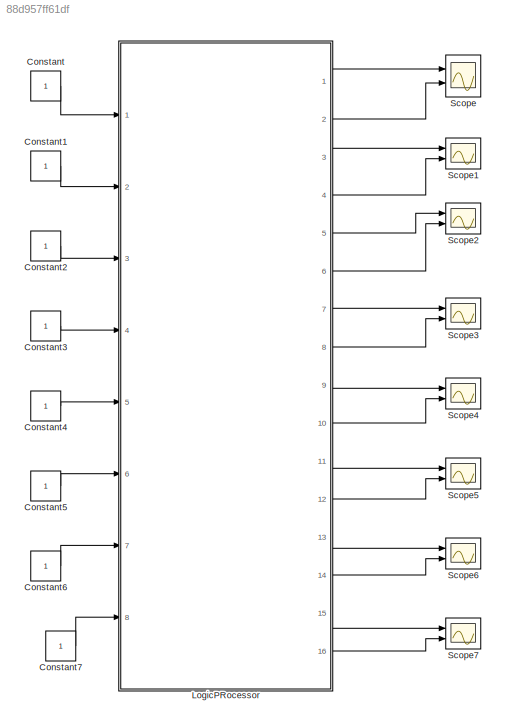
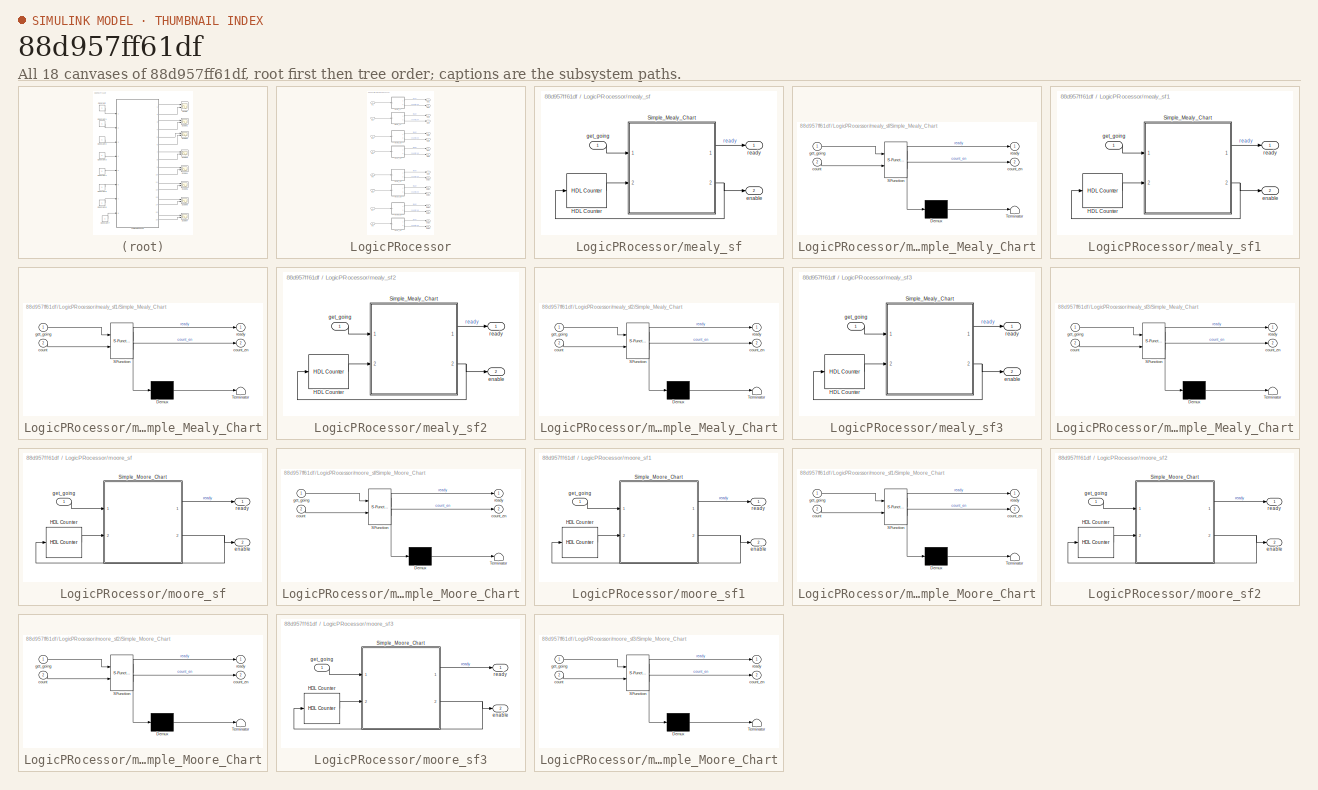
[diagram: thumbnail index - all 18 canvases of the model, root first then tree order]
MODEL slx_88d957ff61df
KIND model
CONFIG AbsTol = auto
CONFIG FixedStep = auto
CONFIG MaxStep = auto
CONFIG MinStep = auto
CONFIG RelTol = 1e-3
CONFIG SampleTimeConstraint = Unconstrained
CONFIG Solver = VariableStepAuto
CONFIG SolverMode = Auto
CONFIG SolverName = VariableStepAuto
CONFIG StartTime = 0.0
CONFIG StopTime = 10.0
BLOCK [Constant] Constant
  OutDataTypeStr = boolean
  SampleTime = 1
BLOCK [Constant] Constant1
  OutDataTypeStr = boolean
  SampleTime = 1
BLOCK [Constant] Constant2
  OutDataTypeStr = boolean
  SampleTime = 1
BLOCK [Constant] Constant3
  OutDataTypeStr = boolean
  SampleTime = 1
BLOCK [Constant] Constant4
  OutDataTypeStr = boolean
  SampleTime = 1
BLOCK [Constant] Constant5
  OutDataTypeStr = boolean
  SampleTime = 1
BLOCK [Constant] Constant6
  OutDataTypeStr = boolean
  SampleTime = 1
BLOCK [Constant] Constant7
  OutDataTypeStr = boolean
  SampleTime = 1
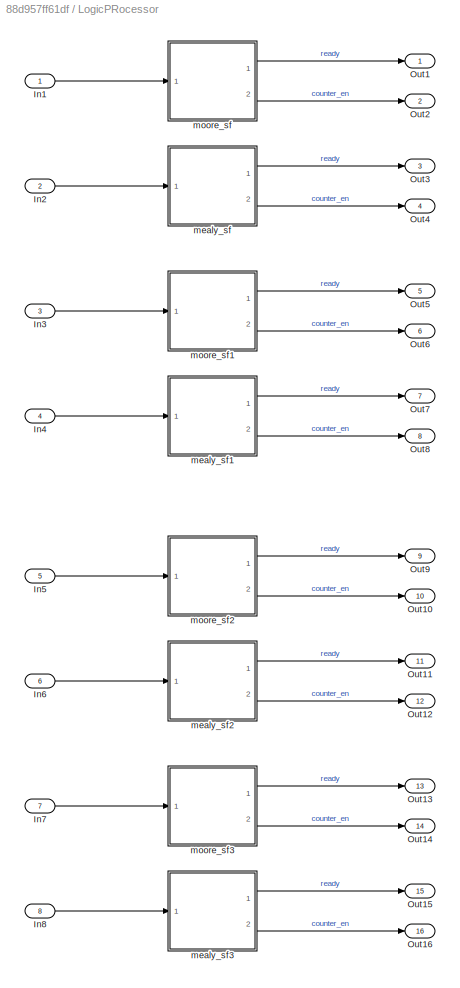
BLOCK [SubSystem] LogicPRocessor
  Ports = [8, 16]
  RequestExecContextInheritance = off
  Variant = off
BLOCK [Inport] LogicPRocessor/In1
  IconDisplay = Port number
BLOCK [Inport] LogicPRocessor/In2
  IconDisplay = Port number
  Port = 2
BLOCK [Inport] LogicPRocessor/In3
  IconDisplay = Port number
  Port = 3
BLOCK [Inport] LogicPRocessor/In4
  IconDisplay = Port number
  Port = 4
BLOCK [Inport] LogicPRocessor/In5
  IconDisplay = Port number
  Port = 5
BLOCK [Inport] LogicPRocessor/In6
  IconDisplay = Port number
  Port = 6
BLOCK [Inport] LogicPRocessor/In7
  IconDisplay = Port number
  Port = 7
BLOCK [Inport] LogicPRocessor/In8
  IconDisplay = Port number
  Port = 8
BLOCK [Outport] LogicPRocessor/Out1
  IconDisplay = Port number
BLOCK [Outport] LogicPRocessor/Out10
  IconDisplay = Port number
  Port = 10
BLOCK [Outport] LogicPRocessor/Out11
  IconDisplay = Port number
  Port = 11
BLOCK [Outport] LogicPRocessor/Out12
  IconDisplay = Port number
  Port = 12
BLOCK [Outport] LogicPRocessor/Out13
  IconDisplay = Port number
  Port = 13
BLOCK [Outport] LogicPRocessor/Out14
  IconDisplay = Port number
  Port = 14
BLOCK [Outport] LogicPRocessor/Out15
  IconDisplay = Port number
  Port = 15
BLOCK [Outport] LogicPRocessor/Out16
  IconDisplay = Port number
  Port = 16
BLOCK [Outport] LogicPRocessor/Out2
  IconDisplay = Port number
  Port = 2
BLOCK [Outport] LogicPRocessor/Out3
  IconDisplay = Port number
  Port = 3
BLOCK [Outport] LogicPRocessor/Out4
  IconDisplay = Port number
  Port = 4
BLOCK [Outport] LogicPRocessor/Out5
  IconDisplay = Port number
  Port = 5
BLOCK [Outport] LogicPRocessor/Out6
  IconDisplay = Port number
  Port = 6
BLOCK [Outport] LogicPRocessor/Out7
  IconDisplay = Port number
  Port = 7
BLOCK [Outport] LogicPRocessor/Out8
  IconDisplay = Port number
  Port = 8
BLOCK [Outport] LogicPRocessor/Out9
  IconDisplay = Port number
  Port = 9
BLOCK [SubSystem] LogicPRocessor/mealy_sf
  Ports = [1, 2]
  RequestExecContextInheritance = off
  Variant = off
BLOCK [Reference] LogicPRocessor/mealy_sf/HDL Counter  REF=hdlsllib/HDL Operations/HDL Counter
  Ports = [1, 1]
  SourceBlock = hdlsllib/HDL Operations/HDL Counter
  SourceType = HDL Counter
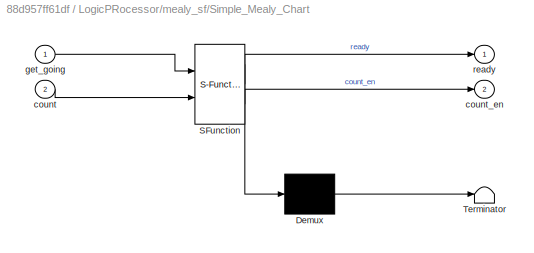
BLOCK [SubSystem] LogicPRocessor/mealy_sf/Simple_Mealy_Chart
  ErrorFcn = Stateflow.Translate.translate
  PermitHierarchicalResolution = ExplicitOnly
  Ports = [2, 2]
  RequestExecContextInheritance = off
  SFBlockType = Chart
  TreatAsAtomicUnit = on
  Variant = off
BLOCK [Demux] LogicPRocessor/mealy_sf/Simple_Mealy_Chart/ Demux 
  Outputs = 1
  Ports = [1, 1]
BLOCK [S-Function] LogicPRocessor/mealy_sf/Simple_Mealy_Chart/ SFunction 
  EnableBusSupport = on
  FunctionName = sf_sfun
  PortCounts = [2 3]
  Ports = [2, 3]
  SFunctionDeploymentMode = off
  Tag = Stateflow S-Function gm_LogicProcessor 2
BLOCK [Terminator] LogicPRocessor/mealy_sf/Simple_Mealy_Chart/ Terminator 
BLOCK [Inport] LogicPRocessor/mealy_sf/Simple_Mealy_Chart/count
  IconDisplay = Port number
  Port = 2
BLOCK [Outport] LogicPRocessor/mealy_sf/Simple_Mealy_Chart/count_en
  IconDisplay = Port number
  Port = 2
BLOCK [Inport] LogicPRocessor/mealy_sf/Simple_Mealy_Chart/get_going
  IconDisplay = Port number
BLOCK [Outport] LogicPRocessor/mealy_sf/Simple_Mealy_Chart/ready
  IconDisplay = Port number
BLOCK [Outport] LogicPRocessor/mealy_sf/enable
  IconDisplay = Port number
  Port = 2
BLOCK [Inport] LogicPRocessor/mealy_sf/get_going
  IconDisplay = Port number
BLOCK [Outport] LogicPRocessor/mealy_sf/ready
  IconDisplay = Port number
BLOCK [SubSystem] LogicPRocessor/mealy_sf1
  Ports = [1, 2]
  RequestExecContextInheritance = off
  Variant = off
BLOCK [Reference] LogicPRocessor/mealy_sf1/HDL Counter  REF=hdlsllib/HDL Operations/HDL Counter
  Ports = [1, 1]
  SourceBlock = hdlsllib/HDL Operations/HDL Counter
  SourceType = HDL Counter
BLOCK [SubSystem] LogicPRocessor/mealy_sf1/Simple_Mealy_Chart
  ErrorFcn = Stateflow.Translate.translate
  PermitHierarchicalResolution = ExplicitOnly
  Ports = [2, 2]
  RequestExecContextInheritance = off
  SFBlockType = Chart
  TreatAsAtomicUnit = on
  Variant = off
BLOCK [Demux] LogicPRocessor/mealy_sf1/Simple_Mealy_Chart/ Demux 
  Outputs = 1
  Ports = [1, 1]
BLOCK [S-Function] LogicPRocessor/mealy_sf1/Simple_Mealy_Chart/ SFunction 
  EnableBusSupport = on
  FunctionName = sf_sfun
  PortCounts = [2 3]
  Ports = [2, 3]
  SFunctionDeploymentMode = off
  Tag = Stateflow S-Function gm_LogicProcessor 3
BLOCK [Terminator] LogicPRocessor/mealy_sf1/Simple_Mealy_Chart/ Terminator 
BLOCK [Inport] LogicPRocessor/mealy_sf1/Simple_Mealy_Chart/count
  IconDisplay = Port number
  Port = 2
BLOCK [Outport] LogicPRocessor/mealy_sf1/Simple_Mealy_Chart/count_en
  IconDisplay = Port number
  Port = 2
BLOCK [Inport] LogicPRocessor/mealy_sf1/Simple_Mealy_Chart/get_going
  IconDisplay = Port number
BLOCK [Outport] LogicPRocessor/mealy_sf1/Simple_Mealy_Chart/ready
  IconDisplay = Port number
BLOCK [Outport] LogicPRocessor/mealy_sf1/enable
  IconDisplay = Port number
  Port = 2
BLOCK [Inport] LogicPRocessor/mealy_sf1/get_going
  IconDisplay = Port number
BLOCK [Outport] LogicPRocessor/mealy_sf1/ready
  IconDisplay = Port number
BLOCK [SubSystem] LogicPRocessor/mealy_sf2
  Ports = [1, 2]
  RequestExecContextInheritance = off
  Variant = off
BLOCK [Reference] LogicPRocessor/mealy_sf2/HDL Counter  REF=hdlsllib/HDL Operations/HDL Counter
  Ports = [1, 1]
  SourceBlock = hdlsllib/HDL Operations/HDL Counter
  SourceType = HDL Counter
BLOCK [SubSystem] LogicPRocessor/mealy_sf2/Simple_Mealy_Chart
  ErrorFcn = Stateflow.Translate.translate
  PermitHierarchicalResolution = ExplicitOnly
  Ports = [2, 2]
  RequestExecContextInheritance = off
  SFBlockType = Chart
  TreatAsAtomicUnit = on
  Variant = off
BLOCK [Demux] LogicPRocessor/mealy_sf2/Simple_Mealy_Chart/ Demux 
  Outputs = 1
  Ports = [1, 1]
BLOCK [S-Function] LogicPRocessor/mealy_sf2/Simple_Mealy_Chart/ SFunction 
  EnableBusSupport = on
  FunctionName = sf_sfun
  PortCounts = [2 3]
  Ports = [2, 3]
  SFunctionDeploymentMode = off
  Tag = Stateflow S-Function gm_LogicProcessor 5
BLOCK [Terminator] LogicPRocessor/mealy_sf2/Simple_Mealy_Chart/ Terminator 
BLOCK [Inport] LogicPRocessor/mealy_sf2/Simple_Mealy_Chart/count
  IconDisplay = Port number
  Port = 2
BLOCK [Outport] LogicPRocessor/mealy_sf2/Simple_Mealy_Chart/count_en
  IconDisplay = Port number
  Port = 2
BLOCK [Inport] LogicPRocessor/mealy_sf2/Simple_Mealy_Chart/get_going
  IconDisplay = Port number
BLOCK [Outport] LogicPRocessor/mealy_sf2/Simple_Mealy_Chart/ready
  IconDisplay = Port number
BLOCK [Outport] LogicPRocessor/mealy_sf2/enable
  IconDisplay = Port number
  Port = 2
BLOCK [Inport] LogicPRocessor/mealy_sf2/get_going
  IconDisplay = Port number
BLOCK [Outport] LogicPRocessor/mealy_sf2/ready
  IconDisplay = Port number
BLOCK [SubSystem] LogicPRocessor/mealy_sf3
  Ports = [1, 2]
  RequestExecContextInheritance = off
  Variant = off
BLOCK [Reference] LogicPRocessor/mealy_sf3/HDL Counter  REF=hdlsllib/HDL Operations/HDL Counter
  Ports = [1, 1]
  SourceBlock = hdlsllib/HDL Operations/HDL Counter
  SourceType = HDL Counter
BLOCK [SubSystem] LogicPRocessor/mealy_sf3/Simple_Mealy_Chart
  ErrorFcn = Stateflow.Translate.translate
  PermitHierarchicalResolution = ExplicitOnly
  Ports = [2, 2]
  RequestExecContextInheritance = off
  SFBlockType = Chart
  TreatAsAtomicUnit = on
  Variant = off
BLOCK [Demux] LogicPRocessor/mealy_sf3/Simple_Mealy_Chart/ Demux 
  Outputs = 1
  Ports = [1, 1]
BLOCK [S-Function] LogicPRocessor/mealy_sf3/Simple_Mealy_Chart/ SFunction 
  EnableBusSupport = on
  FunctionName = sf_sfun
  PortCounts = [2 3]
  Ports = [2, 3]
  SFunctionDeploymentMode = off
  Tag = Stateflow S-Function gm_LogicProcessor 6
BLOCK [Terminator] LogicPRocessor/mealy_sf3/Simple_Mealy_Chart/ Terminator 
BLOCK [Inport] LogicPRocessor/mealy_sf3/Simple_Mealy_Chart/count
  IconDisplay = Port number
  Port = 2
BLOCK [Outport] LogicPRocessor/mealy_sf3/Simple_Mealy_Chart/count_en
  IconDisplay = Port number
  Port = 2
BLOCK [Inport] LogicPRocessor/mealy_sf3/Simple_Mealy_Chart/get_going
  IconDisplay = Port number
BLOCK [Outport] LogicPRocessor/mealy_sf3/Simple_Mealy_Chart/ready
  IconDisplay = Port number
BLOCK [Outport] LogicPRocessor/mealy_sf3/enable
  IconDisplay = Port number
  Port = 2
BLOCK [Inport] LogicPRocessor/mealy_sf3/get_going
  IconDisplay = Port number
BLOCK [Outport] LogicPRocessor/mealy_sf3/ready
  IconDisplay = Port number
BLOCK [SubSystem] LogicPRocessor/moore_sf
  Ports = [1, 2]
  RequestExecContextInheritance = off
  Variant = off
BLOCK [Reference] LogicPRocessor/moore_sf/HDL Counter  REF=hdlsllib/HDL Operations/HDL Counter
  Ports = [1, 1]
  SourceBlock = hdlsllib/HDL Operations/HDL Counter
  SourceType = HDL Counter
BLOCK [SubSystem] LogicPRocessor/moore_sf/Simple_Moore_Chart
  ErrorFcn = Stateflow.Translate.translate
  PermitHierarchicalResolution = ExplicitOnly
  Ports = [2, 2]
  RequestExecContextInheritance = off
  SFBlockType = Chart
  TreatAsAtomicUnit = on
  Variant = off
BLOCK [Demux] LogicPRocessor/moore_sf/Simple_Moore_Chart/ Demux 
  Outputs = 1
  Ports = [1, 1]
BLOCK [S-Function] LogicPRocessor/moore_sf/Simple_Moore_Chart/ SFunction 
  EnableBusSupport = on
  FunctionName = sf_sfun
  PortCounts = [2 3]
  Ports = [2, 3]
  SFunctionDeploymentMode = off
  Tag = Stateflow S-Function gm_LogicProcessor 1
BLOCK [Terminator] LogicPRocessor/moore_sf/Simple_Moore_Chart/ Terminator 
BLOCK [Inport] LogicPRocessor/moore_sf/Simple_Moore_Chart/count
  IconDisplay = Port number
  Port = 2
BLOCK [Outport] LogicPRocessor/moore_sf/Simple_Moore_Chart/count_en
  IconDisplay = Port number
  Port = 2
BLOCK [Inport] LogicPRocessor/moore_sf/Simple_Moore_Chart/get_going
  IconDisplay = Port number
BLOCK [Outport] LogicPRocessor/moore_sf/Simple_Moore_Chart/ready
  IconDisplay = Port number
BLOCK [Outport] LogicPRocessor/moore_sf/enable
  IconDisplay = Port number
  Port = 2
BLOCK [Inport] LogicPRocessor/moore_sf/get_going
  IconDisplay = Port number
BLOCK [Outport] LogicPRocessor/moore_sf/ready
  IconDisplay = Port number
BLOCK [SubSystem] LogicPRocessor/moore_sf1
  Ports = [1, 2]
  RequestExecContextInheritance = off
  Variant = off
BLOCK [Reference] LogicPRocessor/moore_sf1/HDL Counter  REF=hdlsllib/HDL Operations/HDL Counter
  Ports = [1, 1]
  SourceBlock = hdlsllib/HDL Operations/HDL Counter
  SourceType = HDL Counter
BLOCK [SubSystem] LogicPRocessor/moore_sf1/Simple_Moore_Chart
  ErrorFcn = Stateflow.Translate.translate
  PermitHierarchicalResolution = ExplicitOnly
  Ports = [2, 2]
  RequestExecContextInheritance = off
  SFBlockType = Chart
  TreatAsAtomicUnit = on
  Variant = off
BLOCK [Demux] LogicPRocessor/moore_sf1/Simple_Moore_Chart/ Demux 
  Outputs = 1
  Ports = [1, 1]
BLOCK [S-Function] LogicPRocessor/moore_sf1/Simple_Moore_Chart/ SFunction 
  EnableBusSupport = on
  FunctionName = sf_sfun
  PortCounts = [2 3]
  Ports = [2, 3]
  SFunctionDeploymentMode = off
  Tag = Stateflow S-Function gm_LogicProcessor 4
BLOCK [Terminator] LogicPRocessor/moore_sf1/Simple_Moore_Chart/ Terminator 
BLOCK [Inport] LogicPRocessor/moore_sf1/Simple_Moore_Chart/count
  IconDisplay = Port number
  Port = 2
BLOCK [Outport] LogicPRocessor/moore_sf1/Simple_Moore_Chart/count_en
  IconDisplay = Port number
  Port = 2
BLOCK [Inport] LogicPRocessor/moore_sf1/Simple_Moore_Chart/get_going
  IconDisplay = Port number
BLOCK [Outport] LogicPRocessor/moore_sf1/Simple_Moore_Chart/ready
  IconDisplay = Port number
BLOCK [Outport] LogicPRocessor/moore_sf1/enable
  IconDisplay = Port number
  Port = 2
BLOCK [Inport] LogicPRocessor/moore_sf1/get_going
  IconDisplay = Port number
BLOCK [Outport] LogicPRocessor/moore_sf1/ready
  IconDisplay = Port number
BLOCK [SubSystem] LogicPRocessor/moore_sf2
  Ports = [1, 2]
  RequestExecContextInheritance = off
  Variant = off
BLOCK [Reference] LogicPRocessor/moore_sf2/HDL Counter  REF=hdlsllib/HDL Operations/HDL Counter
  Ports = [1, 1]
  SourceBlock = hdlsllib/HDL Operations/HDL Counter
  SourceType = HDL Counter
BLOCK [SubSystem] LogicPRocessor/moore_sf2/Simple_Moore_Chart
  ErrorFcn = Stateflow.Translate.translate
  PermitHierarchicalResolution = ExplicitOnly
  Ports = [2, 2]
  RequestExecContextInheritance = off
  SFBlockType = Chart
  TreatAsAtomicUnit = on
  Variant = off
BLOCK [Demux] LogicPRocessor/moore_sf2/Simple_Moore_Chart/ Demux 
  Outputs = 1
  Ports = [1, 1]
BLOCK [S-Function] LogicPRocessor/moore_sf2/Simple_Moore_Chart/ SFunction 
  EnableBusSupport = on
  FunctionName = sf_sfun
  PortCounts = [2 3]
  Ports = [2, 3]
  SFunctionDeploymentMode = off
  Tag = Stateflow S-Function gm_LogicProcessor 7
BLOCK [Terminator] LogicPRocessor/moore_sf2/Simple_Moore_Chart/ Terminator 
BLOCK [Inport] LogicPRocessor/moore_sf2/Simple_Moore_Chart/count
  IconDisplay = Port number
  Port = 2
BLOCK [Outport] LogicPRocessor/moore_sf2/Simple_Moore_Chart/count_en
  IconDisplay = Port number
  Port = 2
BLOCK [Inport] LogicPRocessor/moore_sf2/Simple_Moore_Chart/get_going
  IconDisplay = Port number
BLOCK [Outport] LogicPRocessor/moore_sf2/Simple_Moore_Chart/ready
  IconDisplay = Port number
BLOCK [Outport] LogicPRocessor/moore_sf2/enable
  IconDisplay = Port number
  Port = 2
BLOCK [Inport] LogicPRocessor/moore_sf2/get_going
  IconDisplay = Port number
BLOCK [Outport] LogicPRocessor/moore_sf2/ready
  IconDisplay = Port number
BLOCK [SubSystem] LogicPRocessor/moore_sf3
  Ports = [1, 2]
  RequestExecContextInheritance = off
  Variant = off
BLOCK [Reference] LogicPRocessor/moore_sf3/HDL Counter  REF=hdlsllib/HDL Operations/HDL Counter
  Ports = [1, 1]
  SourceBlock = hdlsllib/HDL Operations/HDL Counter
  SourceType = HDL Counter
BLOCK [SubSystem] LogicPRocessor/moore_sf3/Simple_Moore_Chart
  ErrorFcn = Stateflow.Translate.translate
  PermitHierarchicalResolution = ExplicitOnly
  Ports = [2, 2]
  RequestExecContextInheritance = off
  SFBlockType = Chart
  TreatAsAtomicUnit = on
  Variant = off
BLOCK [Demux] LogicPRocessor/moore_sf3/Simple_Moore_Chart/ Demux 
  Outputs = 1
  Ports = [1, 1]
BLOCK [S-Function] LogicPRocessor/moore_sf3/Simple_Moore_Chart/ SFunction 
  EnableBusSupport = on
  FunctionName = sf_sfun
  PortCounts = [2 3]
  Ports = [2, 3]
  SFunctionDeploymentMode = off
  Tag = Stateflow S-Function gm_LogicProcessor 8
BLOCK [Terminator] LogicPRocessor/moore_sf3/Simple_Moore_Chart/ Terminator 
BLOCK [Inport] LogicPRocessor/moore_sf3/Simple_Moore_Chart/count
  IconDisplay = Port number
  Port = 2
BLOCK [Outport] LogicPRocessor/moore_sf3/Simple_Moore_Chart/count_en
  IconDisplay = Port number
  Port = 2
BLOCK [Inport] LogicPRocessor/moore_sf3/Simple_Moore_Chart/get_going
  IconDisplay = Port number
BLOCK [Outport] LogicPRocessor/moore_sf3/Simple_Moore_Chart/ready
  IconDisplay = Port number
BLOCK [Outport] LogicPRocessor/moore_sf3/enable
  IconDisplay = Port number
  Port = 2
BLOCK [Inport] LogicPRocessor/moore_sf3/get_going
  IconDisplay = Port number
BLOCK [Outport] LogicPRocessor/moore_sf3/ready
  IconDisplay = Port number
BLOCK [Scope] Scope
  NumInputPorts = 2
  Ports = [2]
  ScopeSpecificationString = Simulink.scopes.TimeScopeBlockCfg('CurrentConfiguration', extmgr.ConfigurationSet(extmgr.Configuration('Core','General UI',true,'ShowLoadConfigSet',false,'ShowNewAction',false,'FigureColor',[0.156862745098039 0.156862745098039 0.156862745098039],'ShowSaveConfigSet',false,'ShowConfiguration',true,'ShowPlaybackToolbar',false),extmgr.Configuration('Core','Source UI',true,'ShowRecentSources',false,'Sh...<+2718ch>
BLOCK [Scope] Scope1
  NumInputPorts = 2
  Ports = [2]
  ScopeSpecificationString = Simulink.scopes.TimeScopeBlockCfg('CurrentConfiguration', extmgr.ConfigurationSet(extmgr.Configuration('Core','General UI',true,'ShowLoadConfigSet',false,'ShowNewAction',false,'FigureColor',[0.156862745098039 0.156862745098039 0.156862745098039],'ShowSaveConfigSet',false,'ShowConfiguration',true,'ShowPlaybackToolbar',false),extmgr.Configuration('Core','Source UI',true,'ShowRecentSources',false,'Sh...<+2755ch>
BLOCK [Scope] Scope2
  NumInputPorts = 2
  Ports = [2]
  ScopeSpecificationString = C++SS(StrPVP('SaveName','ScopeData1'))
BLOCK [Scope] Scope3
  NumInputPorts = 2
  Ports = [2]
  ScopeSpecificationString = C++SS(StrPVP('SaveName','ScopeData2'))
BLOCK [Scope] Scope4
  NumInputPorts = 2
  Ports = [2]
  ScopeSpecificationString = C++SS(StrPVP('SaveName','ScopeData3'))
BLOCK [Scope] Scope5
  NumInputPorts = 2
  Ports = [2]
  ScopeSpecificationString = C++SS(StrPVP('SaveName','ScopeData4'))
BLOCK [Scope] Scope6
  NumInputPorts = 2
  Ports = [2]
  ScopeSpecificationString = C++SS(StrPVP('SaveName','ScopeData1'),StrPVP('SaveName','ScopeData5'))
BLOCK [Scope] Scope7
  NumInputPorts = 2
  Ports = [2]
  ScopeSpecificationString = C++SS(StrPVP('SaveName','ScopeData2'),StrPVP('SaveName','ScopeData6'))
LINE Constant1:1 -> LogicPRocessor:2
LINE Constant2:1 -> LogicPRocessor:3
LINE Constant3:1 -> LogicPRocessor:4
LINE Constant4:1 -> LogicPRocessor:5
LINE Constant5:1 -> LogicPRocessor:6
LINE Constant6:1 -> LogicPRocessor:7
LINE Constant7:1 -> LogicPRocessor:8
LINE Constant:1 -> LogicPRocessor:1
LINE LogicPRocessor/In1:1 -> LogicPRocessor/moore_sf:1
LINE LogicPRocessor/In2:1 -> LogicPRocessor/mealy_sf:1
LINE LogicPRocessor/In3:1 -> LogicPRocessor/moore_sf1:1
LINE LogicPRocessor/In4:1 -> LogicPRocessor/mealy_sf1:1
LINE LogicPRocessor/In5:1 -> LogicPRocessor/moore_sf2:1
LINE LogicPRocessor/In6:1 -> LogicPRocessor/mealy_sf2:1
LINE LogicPRocessor/In7:1 -> LogicPRocessor/moore_sf3:1
LINE LogicPRocessor/In8:1 -> LogicPRocessor/mealy_sf3:1
LINE LogicPRocessor/mealy_sf/HDL Counter:1 -> LogicPRocessor/mealy_sf/Simple_Mealy_Chart:2
LINE LogicPRocessor/mealy_sf/Simple_Mealy_Chart:1 -> LogicPRocessor/mealy_sf/ready:1
NET LogicPRocessor/mealy_sf/Simple_Mealy_Chart:2 -> LogicPRocessor/mealy_sf/HDL Counter:1, LogicPRocessor/mealy_sf/enable:1
LINE LogicPRocessor/mealy_sf/get_going:1 -> LogicPRocessor/mealy_sf/Simple_Mealy_Chart:1
LINE LogicPRocessor/mealy_sf1/HDL Counter:1 -> LogicPRocessor/mealy_sf1/Simple_Mealy_Chart:2
LINE LogicPRocessor/mealy_sf1/Simple_Mealy_Chart:1 -> LogicPRocessor/mealy_sf1/ready:1
NET LogicPRocessor/mealy_sf1/Simple_Mealy_Chart:2 -> LogicPRocessor/mealy_sf1/HDL Counter:1, LogicPRocessor/mealy_sf1/enable:1
LINE LogicPRocessor/mealy_sf1/get_going:1 -> LogicPRocessor/mealy_sf1/Simple_Mealy_Chart:1
LINE LogicPRocessor/mealy_sf1:1 -> LogicPRocessor/Out7:1
LINE LogicPRocessor/mealy_sf1:2 -> LogicPRocessor/Out8:1
LINE LogicPRocessor/mealy_sf2/HDL Counter:1 -> LogicPRocessor/mealy_sf2/Simple_Mealy_Chart:2
LINE LogicPRocessor/mealy_sf2/Simple_Mealy_Chart:1 -> LogicPRocessor/mealy_sf2/ready:1
NET LogicPRocessor/mealy_sf2/Simple_Mealy_Chart:2 -> LogicPRocessor/mealy_sf2/HDL Counter:1, LogicPRocessor/mealy_sf2/enable:1
LINE LogicPRocessor/mealy_sf2/get_going:1 -> LogicPRocessor/mealy_sf2/Simple_Mealy_Chart:1
LINE LogicPRocessor/mealy_sf2:1 -> LogicPRocessor/Out11:1
LINE LogicPRocessor/mealy_sf2:2 -> LogicPRocessor/Out12:1
LINE LogicPRocessor/mealy_sf3/HDL Counter:1 -> LogicPRocessor/mealy_sf3/Simple_Mealy_Chart:2
LINE LogicPRocessor/mealy_sf3/Simple_Mealy_Chart:1 -> LogicPRocessor/mealy_sf3/ready:1
NET LogicPRocessor/mealy_sf3/Simple_Mealy_Chart:2 -> LogicPRocessor/mealy_sf3/HDL Counter:1, LogicPRocessor/mealy_sf3/enable:1
LINE LogicPRocessor/mealy_sf3/get_going:1 -> LogicPRocessor/mealy_sf3/Simple_Mealy_Chart:1
LINE LogicPRocessor/mealy_sf3:1 -> LogicPRocessor/Out15:1
LINE LogicPRocessor/mealy_sf3:2 -> LogicPRocessor/Out16:1
LINE LogicPRocessor/mealy_sf:1 -> LogicPRocessor/Out3:1
LINE LogicPRocessor/mealy_sf:2 -> LogicPRocessor/Out4:1
LINE LogicPRocessor/moore_sf/HDL Counter:1 -> LogicPRocessor/moore_sf/Simple_Moore_Chart:2
LINE LogicPRocessor/moore_sf/Simple_Moore_Chart:1 -> LogicPRocessor/moore_sf/ready:1
NET LogicPRocessor/moore_sf/Simple_Moore_Chart:2 -> LogicPRocessor/moore_sf/HDL Counter:1, LogicPRocessor/moore_sf/enable:1
LINE LogicPRocessor/moore_sf/get_going:1 -> LogicPRocessor/moore_sf/Simple_Moore_Chart:1
LINE LogicPRocessor/moore_sf1/HDL Counter:1 -> LogicPRocessor/moore_sf1/Simple_Moore_Chart:2
LINE LogicPRocessor/moore_sf1/Simple_Moore_Chart:1 -> LogicPRocessor/moore_sf1/ready:1
NET LogicPRocessor/moore_sf1/Simple_Moore_Chart:2 -> LogicPRocessor/moore_sf1/HDL Counter:1, LogicPRocessor/moore_sf1/enable:1
LINE LogicPRocessor/moore_sf1/get_going:1 -> LogicPRocessor/moore_sf1/Simple_Moore_Chart:1
LINE LogicPRocessor/moore_sf1:1 -> LogicPRocessor/Out5:1
LINE LogicPRocessor/moore_sf1:2 -> LogicPRocessor/Out6:1
LINE LogicPRocessor/moore_sf2/HDL Counter:1 -> LogicPRocessor/moore_sf2/Simple_Moore_Chart:2
LINE LogicPRocessor/moore_sf2/Simple_Moore_Chart:1 -> LogicPRocessor/moore_sf2/ready:1
NET LogicPRocessor/moore_sf2/Simple_Moore_Chart:2 -> LogicPRocessor/moore_sf2/HDL Counter:1, LogicPRocessor/moore_sf2/enable:1
LINE LogicPRocessor/moore_sf2/get_going:1 -> LogicPRocessor/moore_sf2/Simple_Moore_Chart:1
LINE LogicPRocessor/moore_sf2:1 -> LogicPRocessor/Out9:1
LINE LogicPRocessor/moore_sf2:2 -> LogicPRocessor/Out10:1
LINE LogicPRocessor/moore_sf3/HDL Counter:1 -> LogicPRocessor/moore_sf3/Simple_Moore_Chart:2
LINE LogicPRocessor/moore_sf3/Simple_Moore_Chart:1 -> LogicPRocessor/moore_sf3/ready:1
NET LogicPRocessor/moore_sf3/Simple_Moore_Chart:2 -> LogicPRocessor/moore_sf3/HDL Counter:1, LogicPRocessor/moore_sf3/enable:1
LINE LogicPRocessor/moore_sf3/get_going:1 -> LogicPRocessor/moore_sf3/Simple_Moore_Chart:1
LINE LogicPRocessor/moore_sf3:1 -> LogicPRocessor/Out13:1
LINE LogicPRocessor/moore_sf3:2 -> LogicPRocessor/Out14:1
LINE LogicPRocessor/moore_sf:1 -> LogicPRocessor/Out1:1
LINE LogicPRocessor/moore_sf:2 -> LogicPRocessor/Out2:1
LINE LogicPRocessor:1 -> Scope:1
LINE LogicPRocessor:10 -> Scope4:2
LINE LogicPRocessor:11 -> Scope5:1
LINE LogicPRocessor:12 -> Scope5:2
LINE LogicPRocessor:13 -> Scope6:1
LINE LogicPRocessor:14 -> Scope6:2
LINE LogicPRocessor:15 -> Scope7:1
LINE LogicPRocessor:16 -> Scope7:2
LINE LogicPRocessor:2 -> Scope:2
LINE LogicPRocessor:3 -> Scope1:1
LINE LogicPRocessor:4 -> Scope1:2
LINE LogicPRocessor:5 -> Scope2:1
LINE LogicPRocessor:6 -> Scope2:2
LINE LogicPRocessor:7 -> Scope3:1
LINE LogicPRocessor:8 -> Scope3:2
LINE LogicPRocessor:9 -> Scope4:1
note: NET lines group one-source signal fan-out (src -> all destinations, sorted); 1:1 wires keep LINE
CHART LogicPRocessor/moore_sf/Simple_Moore_Chart states=2 transitions=3
  STATE_LABEL 'IDLE\nready = true;\ncount_en = false;'
  STATE_LABEL 'COUNTING\n ready = false;\ncount_en = true;'
CHART LogicPRocessor/mealy_sf/Simple_Mealy_Chart states=2 transitions=3
  STATE_LABEL 'IDLE'
  STATE_LABEL 'COUNTING'
CHART LogicPRocessor/mealy_sf1/Simple_Mealy_Chart states=2 transitions=3
  STATE_LABEL 'IDLE'
  STATE_LABEL 'COUNTING'
CHART LogicPRocessor/moore_sf1/Simple_Moore_Chart states=2 transitions=3
  STATE_LABEL 'IDLE\nready = true;\ncount_en = false;'
  STATE_LABEL 'COUNTING\n ready = false;\ncount_en = true;'
CHART LogicPRocessor/mealy_sf2/Simple_Mealy_Chart states=2 transitions=3
  STATE_LABEL 'IDLE'
  STATE_LABEL 'COUNTING'
CHART LogicPRocessor/mealy_sf3/Simple_Mealy_Chart states=2 transitions=3
  STATE_LABEL 'IDLE'
  STATE_LABEL 'COUNTING'
CHART LogicPRocessor/moore_sf2/Simple_Moore_Chart states=2 transitions=3
  STATE_LABEL 'IDLE\nready = true;\ncount_en = false;'
  STATE_LABEL 'COUNTING\n ready = false;\ncount_en = true;'
CHART LogicPRocessor/moore_sf3/Simple_Moore_Chart states=2 transitions=3
  STATE_LABEL 'IDLE\nready = true;\ncount_en = false;'
  STATE_LABEL 'COUNTING\n ready = false;\ncount_en = true;'
